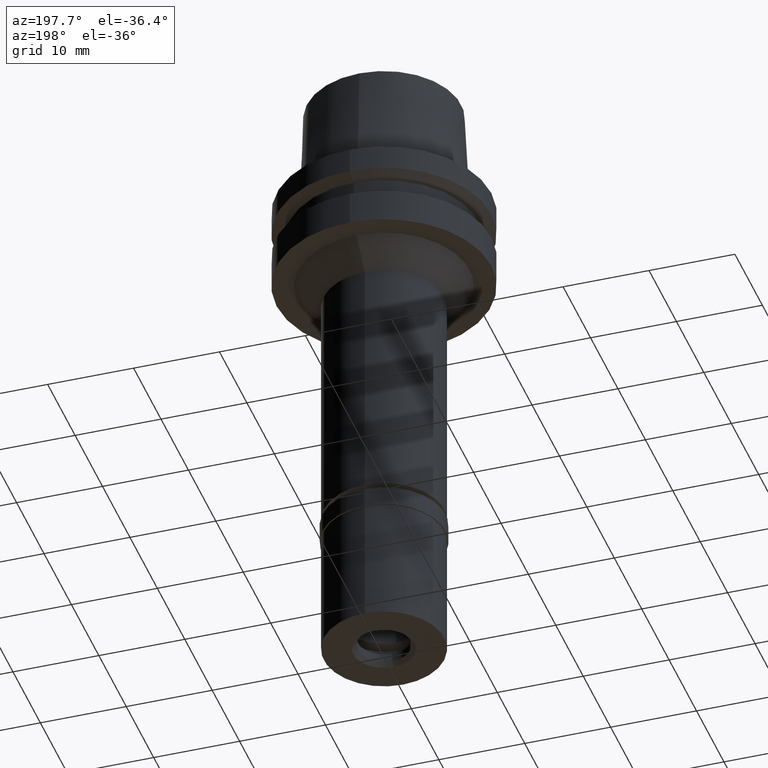
[diagram: clean part render]
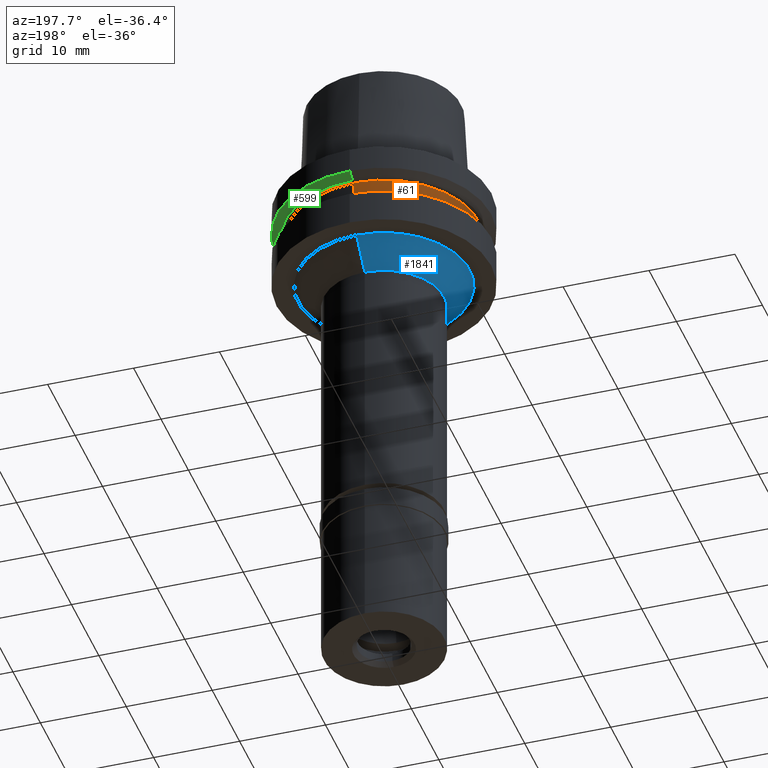
[diagram: same view with three faces highlighted in distinct colors, each labeled with its STEP entity id]
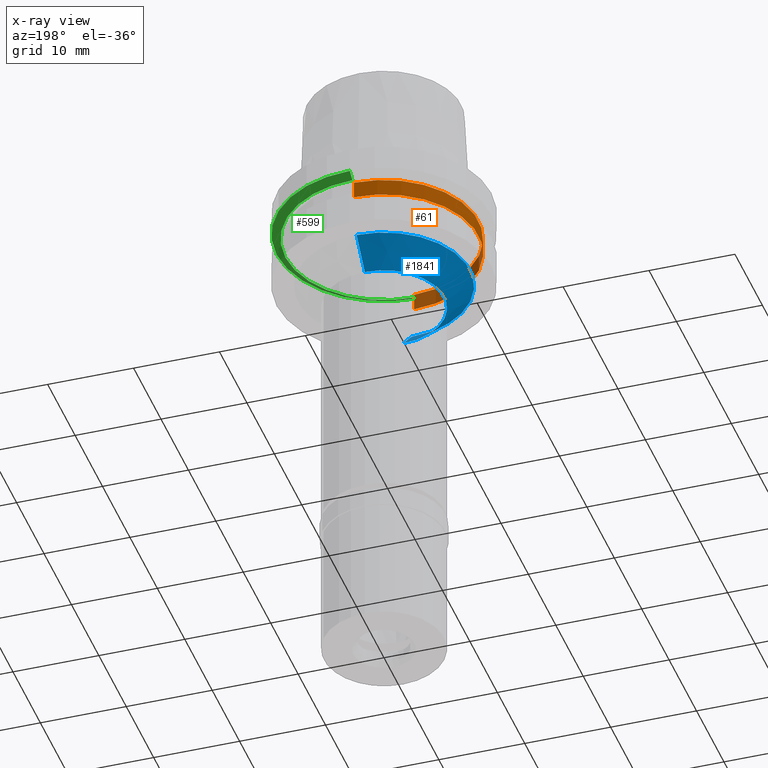
[diagram: x-ray of the same camera — body ghosted, the three highlighted faces saturated]
A machine part, auxiliary view with three faces highlighted in distinct colors.
The next image is the same camera in x-ray (body ghosted, the three faces saturated) — at least one of them is partly hidden behind the body in this view.
Their STEP definitions:

[orange] entity #61 — the highlighted cylindrical surface (partial cylindrical patch) has radius 11 mm, axis along (0, 0, 1).
#61 = ADVANCED_FACE ( 'NONE', ( #1423 ), #136, .T. ) ;
#136 = CYLINDRICAL_SURFACE ( 'NONE', #1118, 11.00000000000000000 ) ;
#218 = VERTEX_POINT ( 'NONE', #1170 ) ;
#424 = DIRECTION ( 'NONE',  ( 0.0000000000000000000, -1.000000000000000000, 0.0000000000000000000 ) ) ;
#483 = DIRECTION ( 'NONE',  ( 0.0000000000000000000, 1.000000000000000000, 0.0000000000000000000 ) ) ;
#518 = ORIENTED_EDGE ( 'NONE', *, *, #1154, .T. ) ;
#528 = VERTEX_POINT ( 'NONE', #847 ) ;
#545 = EDGE_CURVE ( 'NONE', #218, #2279, #1762, .T. ) ;
#623 = DIRECTION ( 'NONE',  ( 0.0000000000000000000, 0.0000000000000000000, -1.000000000000000000 ) ) ;
#673 = VERTEX_POINT ( 'NONE', #935 ) ;
#736 = CARTESIAN_POINT ( 'NONE',  ( 0.0000000000000000000, 11.00000000000000000, -3.500000000000000000 ) ) ;
#740 = ORIENTED_EDGE ( 'NONE', *, *, #545, .T. ) ;
#749 = CARTESIAN_POINT ( 'NONE',  ( 0.0000000000000000000, -11.00000000000000000, -3.500000000000000000 ) ) ;
#847 = CARTESIAN_POINT ( 'NONE',  ( 0.0000000000000000000, 11.00000000000000000, -5.500000000000000000 ) ) ;
#860 = EDGE_CURVE ( 'NONE', #218, #673, #1426, .T. ) ;
#935 = CARTESIAN_POINT ( 'NONE',  ( 0.0000000000000000000, -11.00000000000000000, -5.500000000000000000 ) ) ;
#1080 = DIRECTION ( 'NONE',  ( 0.0000000000000000000, 0.0000000000000000000, 1.000000000000000000 ) ) ;
#1118 = AXIS2_PLACEMENT_3D ( 'NONE', #1602, #1198, #2627 ) ;
#1154 = EDGE_CURVE ( 'NONE', #2279, #528, #1493, .T. ) ;
#1170 = CARTESIAN_POINT ( 'NONE',  ( 0.0000000000000000000, -11.00000000000000000, -3.500000000000000000 ) ) ;
#1198 = DIRECTION ( 'NONE',  ( 0.0000000000000000000, 0.0000000000000000000, 1.000000000000000000 ) ) ;
#1232 = VECTOR ( 'NONE', #2048, 1000.000000000000000 ) ;
#1260 = EDGE_LOOP ( 'NONE', ( #1624, #1705, #740, #518 ) ) ;
#1357 = EDGE_CURVE ( 'NONE', #528, #673, #1507, .T. ) ;
#1423 = FACE_OUTER_BOUND ( 'NONE', #1260, .T. ) ;
#1426 = LINE ( 'NONE', #749, #1232 ) ;
#1437 = DIRECTION ( 'NONE',  ( 0.0000000000000000000, 0.0000000000000000000, -1.000000000000000000 ) ) ;
#1493 = LINE ( 'NONE', #2327, #2108 ) ;
#1507 = CIRCLE ( 'NONE', #2471, 11.00000000000000000 ) ;
#1602 = CARTESIAN_POINT ( 'NONE',  ( 0.0000000000000000000, 0.0000000000000000000, -59.45000000000000284 ) ) ;
#1624 = ORIENTED_EDGE ( 'NONE', *, *, #1357, .T. ) ;
#1705 = ORIENTED_EDGE ( 'NONE', *, *, #860, .F. ) ;
#1762 = CIRCLE ( 'NONE', #2241, 11.00000000000000000 ) ;
#2048 = DIRECTION ( 'NONE',  ( 0.0000000000000000000, 0.0000000000000000000, -1.000000000000000000 ) ) ;
#2108 = VECTOR ( 'NONE', #1437, 1000.000000000000000 ) ;
#2188 = CARTESIAN_POINT ( 'NONE',  ( 0.0000000000000000000, 0.0000000000000000000, -5.500000000000000000 ) ) ;
#2241 = AXIS2_PLACEMENT_3D ( 'NONE', #2296, #623, #424 ) ;
#2279 = VERTEX_POINT ( 'NONE', #736 ) ;
#2296 = CARTESIAN_POINT ( 'NONE',  ( 0.0000000000000000000, 0.0000000000000000000, -3.500000000000000000 ) ) ;
#2327 = CARTESIAN_POINT ( 'NONE',  ( 0.0000000000000000000, 11.00000000000000000, -3.500000000000000000 ) ) ;
#2471 = AXIS2_PLACEMENT_3D ( 'NONE', #2188, #1080, #483 ) ;
#2627 = DIRECTION ( 'NONE',  ( 0.0000000000000000000, 1.000000000000000000, 0.0000000000000000000 ) ) ;

[blue] entity #1841 — the highlighted conical surface has half-angle 45 deg.
#13 = LINE ( 'NONE', #824, #1158 ) ;
#166 = CARTESIAN_POINT ( 'NONE',  ( 0.0000000000000000000, 10.00000000000000000, -10.00000000000000000 ) ) ;
#239 = AXIS2_PLACEMENT_3D ( 'NONE', #455, #614, #1874 ) ;
#252 = LINE ( 'NONE', #1257, #1549 ) ;
#262 = DIRECTION ( 'NONE',  ( 0.0000000000000000000, 1.000000000000000000, 0.0000000000000000000 ) ) ;
#455 = CARTESIAN_POINT ( 'NONE',  ( 0.0000000000000000000, 0.0000000000000000000, -13.00000000000000000 ) ) ;
#461 = EDGE_CURVE ( 'NONE', #1634, #786, #13, .T. ) ;
#481 = EDGE_LOOP ( 'NONE', ( #2513, #1524, #1924, #1369 ) ) ;
#553 = CARTESIAN_POINT ( 'NONE',  ( 0.0000000000000000000, 0.0000000000000000000, -10.00000000000000000 ) ) ;
#568 = VERTEX_POINT ( 'NONE', #166 ) ;
#597 = DIRECTION ( 'NONE',  ( 0.0000000000000000000, 0.0000000000000000000, -1.000000000000000000 ) ) ;
#614 = DIRECTION ( 'NONE',  ( 0.0000000000000000000, 0.0000000000000000000, -1.000000000000000000 ) ) ;
#641 = CIRCLE ( 'NONE', #239, 7.000000000000000000 ) ;
#786 = VERTEX_POINT ( 'NONE', #1781 ) ;
#824 = CARTESIAN_POINT ( 'NONE',  ( 0.0000000000000000000, -10.00000000000000000, -10.00000000000000000 ) ) ;
#834 = DIRECTION ( 'NONE',  ( 0.0000000000000000000, 0.7071067811865474617, -0.7071067811865474617 ) ) ;
#927 = CARTESIAN_POINT ( 'NONE',  ( 0.0000000000000000000, 0.0000000000000000000, -11.50000000000000000 ) ) ;
#939 = AXIS2_PLACEMENT_3D ( 'NONE', #553, #597, #1832 ) ;
#1053 = EDGE_CURVE ( 'NONE', #568, #1136, #252, .T. ) ;
#1128 = EDGE_CURVE ( 'NONE', #786, #1136, #641, .T. ) ;
#1136 = VERTEX_POINT ( 'NONE', #2485 ) ;
#1158 = VECTOR ( 'NONE', #834, 1000.000000000000114 ) ;
#1257 = CARTESIAN_POINT ( 'NONE',  ( 0.0000000000000000000, 10.00000000000000000, -10.00000000000000000 ) ) ;
#1369 = ORIENTED_EDGE ( 'NONE', *, *, #1053, .T. ) ;
#1406 = EDGE_CURVE ( 'NONE', #1634, #568, #1981, .T. ) ;
#1524 = ORIENTED_EDGE ( 'NONE', *, *, #461, .F. ) ;
#1549 = VECTOR ( 'NONE', #2681, 1000.000000000000114 ) ;
#1634 = VERTEX_POINT ( 'NONE', #2481 ) ;
#1688 = AXIS2_PLACEMENT_3D ( 'NONE', #927, #1937, #262 ) ;
#1781 = CARTESIAN_POINT ( 'NONE',  ( 0.0000000000000000000, -7.000000000000000000, -13.00000000000000000 ) ) ;
#1815 = CONICAL_SURFACE ( 'NONE', #1688, 8.500000000000000000, 0.7853981633972997312 ) ;
#1832 = DIRECTION ( 'NONE',  ( 0.0000000000000000000, -1.000000000000000000, 0.0000000000000000000 ) ) ;
#1841 = ADVANCED_FACE ( 'NONE', ( #2600 ), #1815, .T. ) ;
#1874 = DIRECTION ( 'NONE',  ( 0.0000000000000000000, -1.000000000000000000, 0.0000000000000000000 ) ) ;
#1924 = ORIENTED_EDGE ( 'NONE', *, *, #1406, .T. ) ;
#1937 = DIRECTION ( 'NONE',  ( 0.0000000000000000000, 0.0000000000000000000, 1.000000000000000000 ) ) ;
#1981 = CIRCLE ( 'NONE', #939, 10.00000000000000000 ) ;
#2481 = CARTESIAN_POINT ( 'NONE',  ( 0.0000000000000000000, -10.00000000000000000, -10.00000000000000000 ) ) ;
#2485 = CARTESIAN_POINT ( 'NONE',  ( 0.0000000000000000000, 7.000000000000000000, -13.00000000000000000 ) ) ;
#2513 = ORIENTED_EDGE ( 'NONE', *, *, #1128, .F. ) ;
#2600 = FACE_OUTER_BOUND ( 'NONE', #481, .T. ) ;
#2681 = DIRECTION ( 'NONE',  ( 0.0000000000000000000, -0.7071067811865474617, -0.7071067811865474617 ) ) ;

[green] entity #599 — the highlighted conical surface has half-angle 60 deg.
#22 = VECTOR ( 'NONE', #2470, 1000.000000000000114 ) ;
#204 = DIRECTION ( 'NONE',  ( 0.0000000000000000000, 0.0000000000000000000, 1.000000000000000000 ) ) ;
#269 = CARTESIAN_POINT ( 'NONE',  ( 0.0000000000000000000, 0.0000000000000000000, -2.912286759726999907 ) ) ;
#283 = CONICAL_SURFACE ( 'NONE', #1277, 11.99102540378000192, 1.047197551196400456 ) ;
#296 = ORIENTED_EDGE ( 'NONE', *, *, #495, .T. ) ;
#344 = CARTESIAN_POINT ( 'NONE',  ( 0.0000000000000000000, -11.48205080757000118, -3.499999999997000177 ) ) ;
#361 = ORIENTED_EDGE ( 'NONE', *, *, #2002, .F. ) ;
#463 = AXIS2_PLACEMENT_3D ( 'NONE', #269, #1720, #1919 ) ;
#495 = EDGE_CURVE ( 'NONE', #2526, #696, #1891, .T. ) ;
#552 = CIRCLE ( 'NONE', #463, 12.50000000000000000 ) ;
#556 = LINE ( 'NONE', #1578, #22 ) ;
#599 = ADVANCED_FACE ( 'NONE', ( #2493 ), #283, .T. ) ;
#696 = VERTEX_POINT ( 'NONE', #2151 ) ;
#802 = VERTEX_POINT ( 'NONE', #2608 ) ;
#924 = EDGE_CURVE ( 'NONE', #2482, #696, #556, .T. ) ;
#971 = CARTESIAN_POINT ( 'NONE',  ( 0.0000000000000000000, 12.50000000000000000, -2.912286759727999996 ) ) ;
#1129 = DIRECTION ( 'NONE',  ( 0.0000000000000000000, 0.8660254037846089048, -0.4999999999997049027 ) ) ;
#1277 = AXIS2_PLACEMENT_3D ( 'NONE', #1657, #204, #2282 ) ;
#1578 = CARTESIAN_POINT ( 'NONE',  ( 0.0000000000000000000, 12.50000000000000000, -2.912286759727999996 ) ) ;
#1657 = CARTESIAN_POINT ( 'NONE',  ( 0.0000000000000000000, 0.0000000000000000000, -3.206143379862000042 ) ) ;
#1680 = AXIS2_PLACEMENT_3D ( 'NONE', #1858, #1882, #2691 ) ;
#1720 = DIRECTION ( 'NONE',  ( 0.0000000000000000000, 0.0000000000000000000, 1.000000000000000000 ) ) ;
#1858 = CARTESIAN_POINT ( 'NONE',  ( 0.0000000000000000000, 0.0000000000000000000, -3.499999999997000177 ) ) ;
#1882 = DIRECTION ( 'NONE',  ( 0.0000000000000000000, 0.0000000000000000000, 1.000000000000000000 ) ) ;
#1891 = CIRCLE ( 'NONE', #1680, 11.48205080757000118 ) ;
#1902 = EDGE_LOOP ( 'NONE', ( #361, #2394, #296, #2580 ) ) ;
#1919 = DIRECTION ( 'NONE',  ( 0.0000000000000000000, -1.000000000000000000, 0.0000000000000000000 ) ) ;
#2002 = EDGE_CURVE ( 'NONE', #802, #2482, #552, .T. ) ;
#2149 = VECTOR ( 'NONE', #1129, 1000.000000000000114 ) ;
#2151 = CARTESIAN_POINT ( 'NONE',  ( 0.0000000000000000000, 11.48205080757000118, -3.499999999997999822 ) ) ;
#2170 = CARTESIAN_POINT ( 'NONE',  ( 0.0000000000000000000, -12.50000000000000000, -2.912286759727999996 ) ) ;
#2282 = DIRECTION ( 'NONE',  ( 0.0000000000000000000, 1.000000000000000000, 0.0000000000000000000 ) ) ;
#2368 = EDGE_CURVE ( 'NONE', #802, #2526, #2609, .T. ) ;
#2394 = ORIENTED_EDGE ( 'NONE', *, *, #2368, .T. ) ;
#2470 = DIRECTION ( 'NONE',  ( 0.0000000000000000000, -0.8660254037846089048, -0.4999999999997049027 ) ) ;
#2482 = VERTEX_POINT ( 'NONE', #971 ) ;
#2493 = FACE_OUTER_BOUND ( 'NONE', #1902, .T. ) ;
#2526 = VERTEX_POINT ( 'NONE', #344 ) ;
#2580 = ORIENTED_EDGE ( 'NONE', *, *, #924, .F. ) ;
#2608 = CARTESIAN_POINT ( 'NONE',  ( 0.0000000000000000000, -12.50000000000000000, -2.912286759727999996 ) ) ;
#2609 = LINE ( 'NONE', #2170, #2149 ) ;
#2691 = DIRECTION ( 'NONE',  ( 0.0000000000000000000, -1.000000000000000000, 0.0000000000000000000 ) ) ;